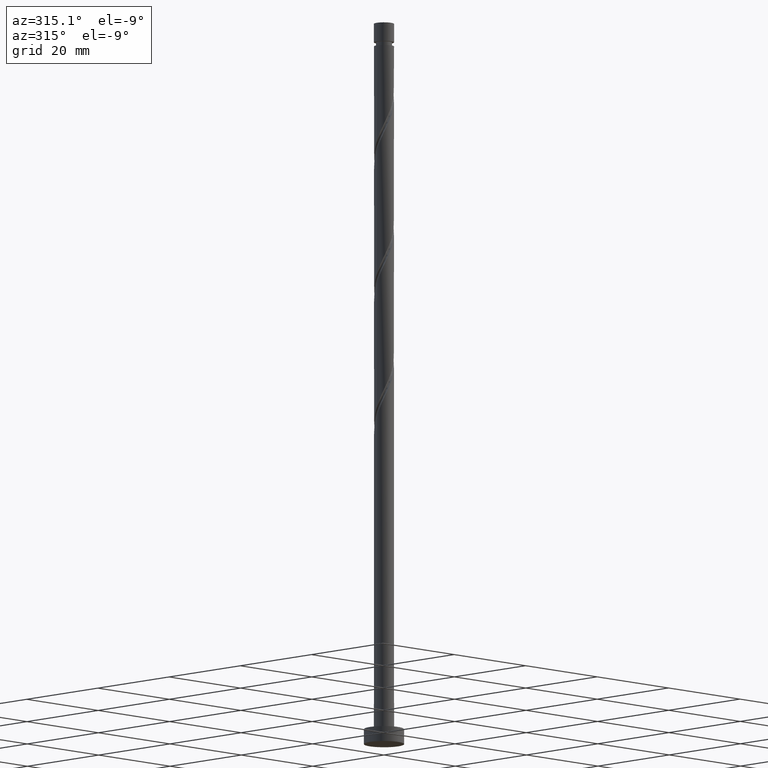
[diagram: clean part render]
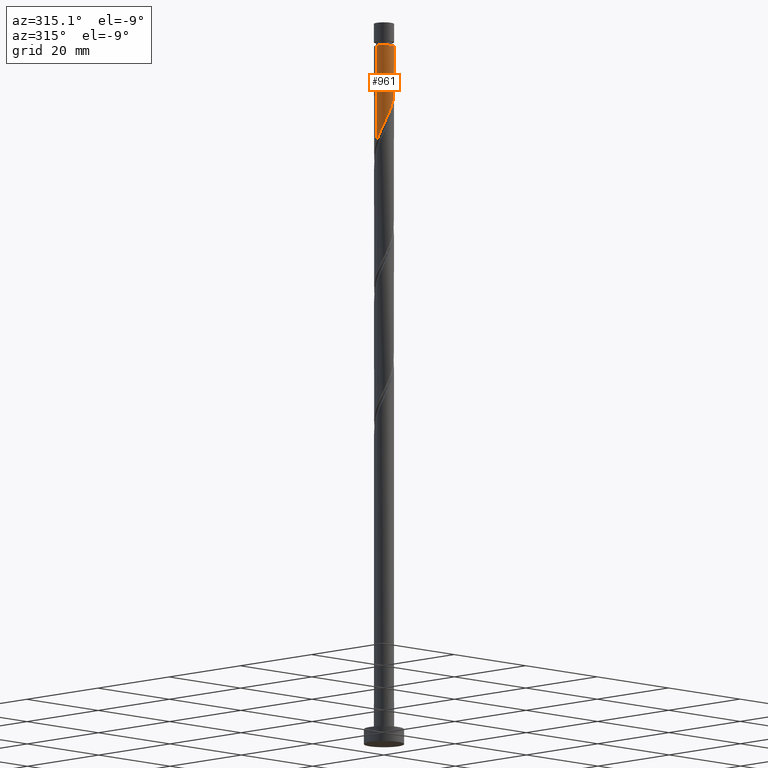
[diagram: same view with one face highlighted and labeled with its STEP entity id]
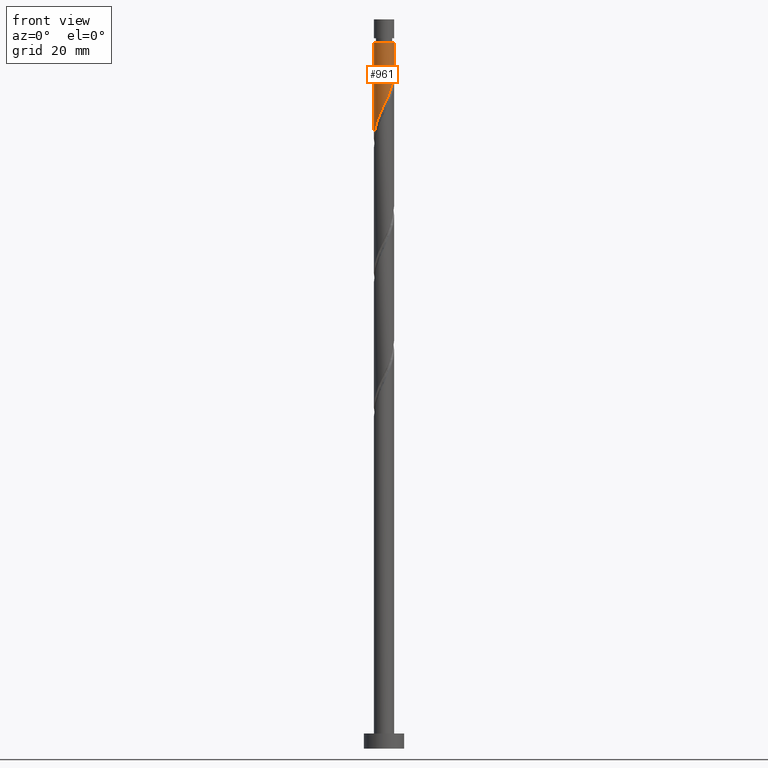
[diagram: same view with one face highlighted and labeled with its STEP entity id]
A machine part, auxiliary view. The second image highlights one B-rep face of the part: STEP entity #961.
A second angle (front view) of the same face is appended — the face is thin or edge-on in the first view.
In plain terms, the highlighted cylindrical surface (edge-blend (fillet) strip) has radius 2 mm, axis along (-0, -0, -1).
Its self-contained STEP definition (entity closure, byte-faithful):
#3 = CARTESIAN_POINT ( 'NONE',  ( -1.948211798543799889, -0.4521844623765072790, 121.8863529555055294 ) ) ;
#10 = CARTESIAN_POINT ( 'NONE',  ( 2.000000000000000000, 2.449293598294706414E-16, 144.5999999999999943 ) ) ;
#35 = EDGE_LOOP ( 'NONE', ( #694, #334, #1016, #1213 ) ) ;
#97 = CARTESIAN_POINT ( 'NONE',  ( 1.883409435608315752, -0.6728810428757546758, 132.7954438645964217 ) ) ;
#110 = DIRECTION ( 'NONE',  ( -0.000000000000000000, -0.000000000000000000, -1.000000000000000000 ) ) ;
#116 = CARTESIAN_POINT ( 'NONE',  ( 1.999999999999999112, -0.05755105304764379648, 134.1288609452396940 ) ) ;
#142 = CARTESIAN_POINT ( 'NONE',  ( -1.188337955536407309, -1.634179211325358372, 124.9166559858085463 ) ) ;
#169 = AXIS2_PLACEMENT_3D ( 'NONE', #475, #110, #616 ) ;
#266 = CARTESIAN_POINT ( 'NONE',  ( -0.6798004310727961963, -1.902776961498551245, 126.1287771979297219 ) ) ;
#275 = CARTESIAN_POINT ( 'NONE',  ( -1.999999999999999556, -6.431432902503466190E-16, 120.9176256166245764 ) ) ;
#290 = LINE ( 'NONE', #10, #1400 ) ;
#305 = CARTESIAN_POINT ( 'NONE',  ( -1.600603406160405084, -1.233189980288572185, 123.7045347736873282 ) ) ;
#334 = ORIENTED_EDGE ( 'NONE', *, *, #1536, .T. ) ;
#351 = CYLINDRICAL_SURFACE ( 'NONE', #169, 2.000000000000000000 ) ;
#394 = CARTESIAN_POINT ( 'NONE',  ( -1.394470680848406641, -1.433684595806965056, 124.3105953797479089 ) ) ;
#418 = CARTESIAN_POINT ( 'NONE',  ( 1.786663747202081876, -0.9436744384215538517, 132.1893832585358268 ) ) ;
#456 = EDGE_CURVE ( 'NONE', #1376, #469, #290, .T. ) ;
#469 = VERTEX_POINT ( 'NONE', #1555 ) ;
#475 = CARTESIAN_POINT ( 'NONE',  ( 0.000000000000000000, 0.000000000000000000, 144.5999999999999943 ) ) ;
#481 = EDGE_CURVE ( 'NONE', #960, #1092, #1432, .T. ) ;
#524 = CARTESIAN_POINT ( 'NONE',  ( 1.448427499289741682, -1.408810338760219771, 130.9772620464146371 ) ) ;
#571 = CIRCLE ( 'NONE', #1138, 1.999999999999994893 ) ;
#616 = DIRECTION ( 'NONE',  ( -1.000000000000000000, 0.000000000000000000, 0.000000000000000000 ) ) ;
#660 = CARTESIAN_POINT ( 'NONE',  ( -1.741900447066337954, -0.9827425057002928677, 123.0984741676267475 ) ) ;
#694 = ORIENTED_EDGE ( 'NONE', *, *, #456, .F. ) ;
#756 = CARTESIAN_POINT ( 'NONE',  ( 1.999999999999999556, 2.393091312559429785E-16, 134.2509589499579192 ) ) ;
#774 = CARTESIAN_POINT ( 'NONE',  ( 1.617545623245911335, -1.176242388590886589, 131.5833226524751751 ) ) ;
#792 = CARTESIAN_POINT ( 'NONE',  ( 0.7248413235775359453, -1.864029252891264754, 129.1590802282327957 ) ) ;
#813 = CARTESIAN_POINT ( 'NONE',  ( 0.9928482695149667414, -1.759812803970228101, 129.7651408342933905 ) ) ;
#857 = CARTESIAN_POINT ( 'NONE',  ( 1.999999999999994893, 2.449293598294702963E-16, 140.0681711373237022 ) ) ;
#888 =( BOUNDED_CURVE ( )  B_SPLINE_CURVE ( 2, ( #756, #116, #1026, #1256, #97, #418, #774, #524, #1448, #813, #792, #1199, #1657, #1043, #1036, #266, #1548, #142, #394, #305, #660, #1164, #3, #1441, #275 ),
 .UNSPECIFIED., .F., .T. ) 
 B_SPLINE_CURVE_WITH_KNOTS ( ( 3, 2, 2, 2, 2, 2, 2, 2, 2, 2, 2, 2, 3 ),
 ( 0.3045252162417512731, 0.3068181818181818232, 0.3181818181818181768, 0.3295454545454545303, 0.3409090909090908839, 0.3522727272727272929, 0.3636363636363636465, 0.3750000000000000000, 0.3863636363636363535, 0.3977272727272727071, 0.4090909090909091161, 0.4204545454545454697, 0.4295252162417513286 ),
 .UNSPECIFIED. ) 
 CURVE ( )  GEOMETRIC_REPRESENTATION_ITEM ( )  RATIONAL_B_SPLINE_CURVE ( ( 0.9061101570135592365, 0.9072237824201413448, 0.9090909090909189416, 0.8998376744372211800, 0.9090909090909189416, 0.8998376744372211800, 0.9090909090909189416, 0.8998376744372211800, 0.9090909090909189416, 0.8998376744372211800, 0.9090909090909189416, 0.8998376744372211800, 0.9090909090909189416, 0.8998376744372211800, 0.9090909090909189416, 0.8998376744372211800, 0.9090909090909189416, 0.8998376744372211800, 0.9090909090909189416, 0.8998376744372211800, 0.9090909090909189416, 0.8998376744372211800, 0.9090909090909189416, 0.9017048011079987768, 0.9061101570135593475 ) ) 
 REPRESENTATION_ITEM ( '' )  );
#930 = CARTESIAN_POINT ( 'NONE',  ( 0.000000000000000000, 0.000000000000000000, 140.0681711373237022 ) ) ;
#960 = VERTEX_POINT ( 'NONE', #1353 ) ;
#961 = ADVANCED_FACE ( 'NONE', ( #1628 ), #351, .T. ) ;
#966 = CARTESIAN_POINT ( 'NONE',  ( -1.999999999999999556, -6.431432902503466190E-16, 120.9176256166245764 ) ) ;
#970 = VECTOR ( 'NONE', #1326, 1000.000000000000000 ) ;
#1016 = ORIENTED_EDGE ( 'NONE', *, *, #481, .T. ) ;
#1026 = CARTESIAN_POINT ( 'NONE',  ( 1.996690616564938958, -0.1150068768444775791, 134.0075650767176398 ) ) ;
#1036 = CARTESIAN_POINT ( 'NONE',  ( -0.3979949748426486189, -1.959999999999999520, 126.7348378039903594 ) ) ;
#1043 = CARTESIAN_POINT ( 'NONE',  ( -0.1161895186125012913, -2.017223038501447796, 127.3408984100509684 ) ) ;
#1052 = DIRECTION ( 'NONE',  ( -0.000000000000000000, -0.000000000000000000, -1.000000000000000000 ) ) ;
#1063 = DIRECTION ( 'NONE',  ( -0.000000000000000000, -0.000000000000000000, -1.000000000000000000 ) ) ;
#1092 = VERTEX_POINT ( 'NONE', #966 ) ;
#1138 = AXIS2_PLACEMENT_3D ( 'NONE', #930, #1063, #1442 ) ;
#1164 = CARTESIAN_POINT ( 'NONE',  ( -1.883197487972271933, -0.7322950311120137723, 122.4924135615660958 ) ) ;
#1167 = EDGE_CURVE ( 'NONE', #469, #1092, #888, .T. ) ;
#1199 = CARTESIAN_POINT ( 'NONE',  ( 0.4568343776401056489, -1.968245701812300963, 128.5530196221722008 ) ) ;
#1204 = CARTESIAN_POINT ( 'NONE',  ( -2.000000000000000000, 0.000000000000000000, 144.5999999999999943 ) ) ;
#1213 = ORIENTED_EDGE ( 'NONE', *, *, #1167, .F. ) ;
#1256 = CARTESIAN_POINT ( 'NONE',  ( 1.980155124014550738, -0.4020876473299556664, 133.4015044706570450 ) ) ;
#1326 = DIRECTION ( 'NONE',  ( -0.000000000000000000, -0.000000000000000000, -1.000000000000000000 ) ) ;
#1353 = CARTESIAN_POINT ( 'NONE',  ( -1.999999999999994893, 0.000000000000000000, 140.0681711373237022 ) ) ;
#1376 = VERTEX_POINT ( 'NONE', #857 ) ;
#1400 = VECTOR ( 'NONE', #1052, 1000.000000000000000 ) ;
#1432 = LINE ( 'NONE', #1204, #970 ) ;
#1441 = CARTESIAN_POINT ( 'NONE',  ( -1.999999999999999556, -0.2290578547702457057, 121.4035855695958759 ) ) ;
#1442 = DIRECTION ( 'NONE',  ( -1.000000000000000000, 0.000000000000000000, 0.000000000000000000 ) ) ;
#1448 = CARTESIAN_POINT ( 'NONE',  ( 1.220637884402353324, -1.584311571365224047, 130.3712014403539570 ) ) ;
#1536 = EDGE_CURVE ( 'NONE', #1376, #960, #571, .T. ) ;
#1548 = CARTESIAN_POINT ( 'NONE',  ( -0.9340691933046016970, -1.768478086411954475, 125.5227165918691412 ) ) ;
#1555 = CARTESIAN_POINT ( 'NONE',  ( 1.999999999999999556, 2.393091312559429291E-16, 134.2509589499579192 ) ) ;
#1628 = FACE_OUTER_BOUND ( 'NONE', #35, .T. ) ;
#1657 = CARTESIAN_POINT ( 'NONE',  ( 0.1703224295138016653, -1.992734370156873824, 127.9469590161115491 ) ) ;